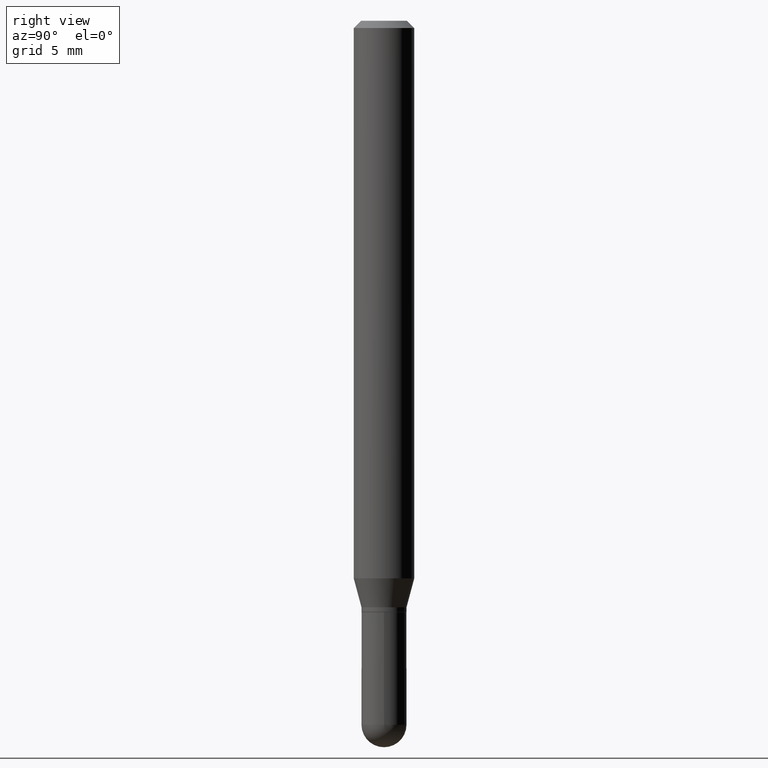
[diagram: clean part render]
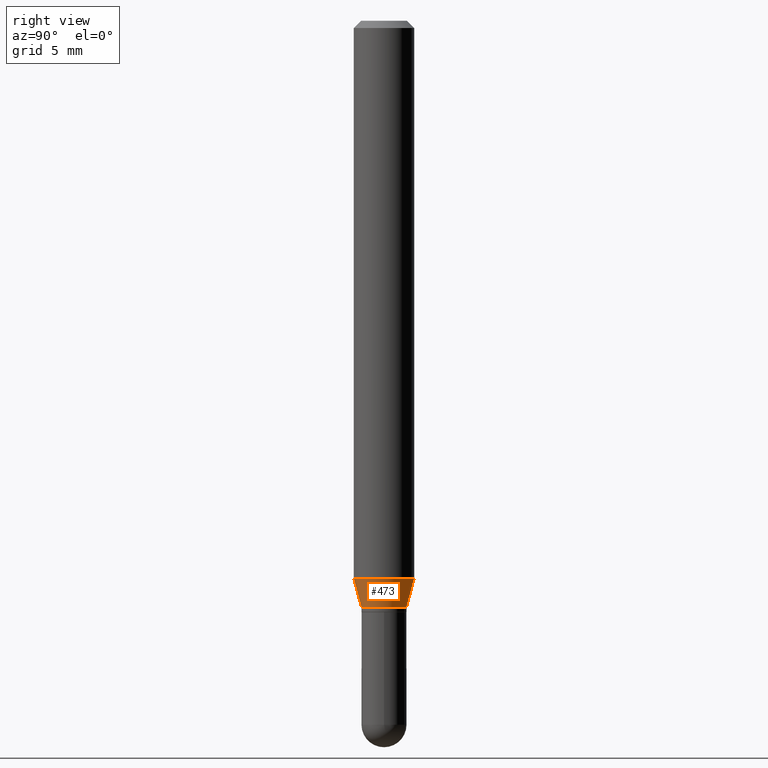
[diagram: same view with one face highlighted and labeled with its STEP entity id]
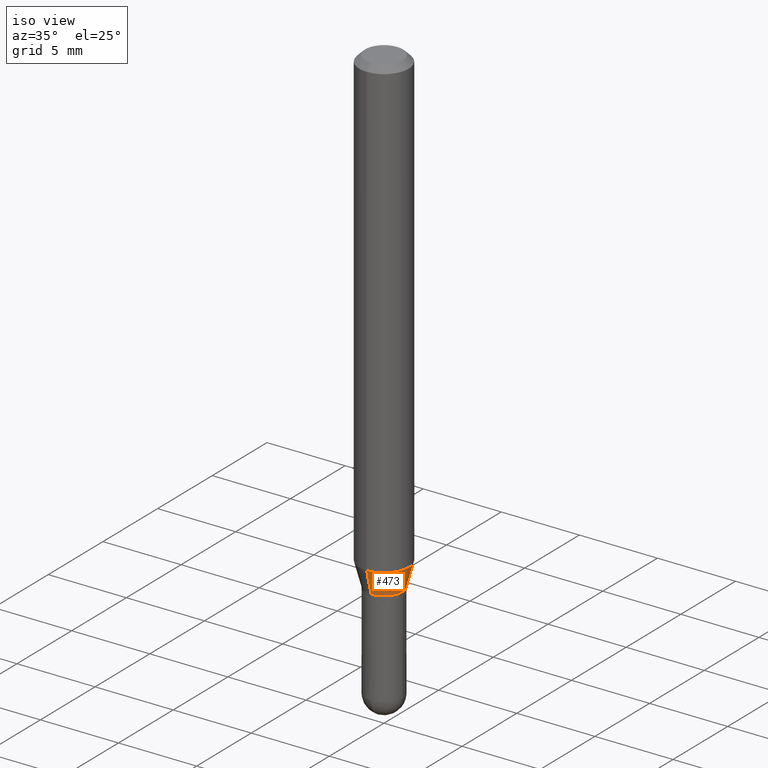
[diagram: same view with one face highlighted and labeled with its STEP entity id]
A machine part, right view. The second image highlights one B-rep face of the part: STEP entity #473.
A second angle (iso view) of the same face is appended — the face is thin or edge-on in the first view.
In plain terms, the highlighted conical surface has half-angle 15 deg.
Its self-contained STEP definition (entity closure, byte-faithful):
#9 = DIRECTION ( 'NONE',  ( -6.982962677686266711E-15, -1.000000000000000000, 2.937470960929311090E-15 ) ) ;
#13 = VERTEX_POINT ( 'NONE', #455 ) ;
#17 = DIRECTION ( 'NONE',  ( -1.807323732225332900E-15, -0.2588190451025185745, 0.9659258262890687563 ) ) ;
#21 = VERTEX_POINT ( 'NONE', #293 ) ;
#74 = DIRECTION ( 'NONE',  ( -6.982962677686266711E-15, -1.000000000000000000, 2.937470960929311090E-15 ) ) ;
#108 = EDGE_CURVE ( 'NONE', #400, #21, #458, .T. ) ;
#118 = CARTESIAN_POINT ( 'NONE',  ( -4.364351673553635169E-16, -0.06250000000000402456, -1.151287187078898544 ) ) ;
#123 = ORIENTED_EDGE ( 'NONE', *, *, #313, .T. ) ;
#143 = ORIENTED_EDGE ( 'NONE', *, *, #309, .F. ) ;
#152 = DIRECTION ( 'NONE',  ( -2.445413414285235808E-29, 3.491560663196514639E-15, 1.000000000000000000 ) ) ;
#187 = VERTEX_POINT ( 'NONE', #118 ) ;
#191 = DIRECTION ( 'NONE',  ( 1.839019923739603471E-15, 0.2588190451025254024, 0.9659258262890670910 ) ) ;
#198 = CIRCLE ( 'NONE', #486, 0.06250000000000000000 ) ;
#205 = VECTOR ( 'NONE', #191, 39.37007874015748143 ) ;
#220 = EDGE_CURVE ( 'NONE', #187, #21, #198, .T. ) ;
#254 = ORIENTED_EDGE ( 'NONE', *, *, #220, .F. ) ;
#261 = CARTESIAN_POINT ( 'NONE',  ( 2.961395644699421019E-29, -4.228279963130980409E-15, -1.211000000000000298 ) ) ;
#284 = CARTESIAN_POINT ( 'NONE',  ( -3.247077645123822595E-16, -0.04650000000000429484, -1.211000000000000076 ) ) ;
#287 = DIRECTION ( 'NONE',  ( -6.982962677686265922E-15, -1.000000000000000000, 4.370956789862821150E-15 ) ) ;
#290 = AXIS2_PLACEMENT_3D ( 'NONE', #261, #152, #74 ) ;
#293 = CARTESIAN_POINT ( 'NONE',  ( 4.440892098500906207E-16, 0.06249999999999597544, -1.151287187078898988 ) ) ;
#296 = FACE_OUTER_BOUND ( 'NONE', #481, .T. ) ;
#309 = EDGE_CURVE ( 'NONE', #13, #187, #443, .T. ) ;
#313 = EDGE_CURVE ( 'NONE', #13, #400, #452, .T. ) ;
#322 = VECTOR ( 'NONE', #17, 39.37007874015748854 ) ;
#329 = AXIS2_PLACEMENT_3D ( 'NONE', #408, #441, #9 ) ;
#330 = ORIENTED_EDGE ( 'NONE', *, *, #108, .T. ) ;
#375 = DIRECTION ( 'NONE',  ( -2.445413414285235808E-29, 3.491560663196514639E-15, 1.000000000000000000 ) ) ;
#400 = VERTEX_POINT ( 'NONE', #418 ) ;
#408 = CARTESIAN_POINT ( 'NONE',  ( 2.961395644699421019E-29, -4.228279963130980409E-15, -1.211000000000000298 ) ) ;
#418 = CARTESIAN_POINT ( 'NONE',  ( 3.872457909892837387E-16, 0.04649999999999584327, -1.211000000000000520 ) ) ;
#437 = CONICAL_SURFACE ( 'NONE', #290, 0.04650000000000006906, 0.2617993877991507401 ) ;
#441 = DIRECTION ( 'NONE',  ( -2.445413414285235808E-29, 3.491560663196514639E-15, 1.000000000000000000 ) ) ;
#443 = LINE ( 'NONE', #284, #322 ) ;
#452 = CIRCLE ( 'NONE', #329, 0.04650000000000006906 ) ;
#455 = CARTESIAN_POINT ( 'NONE',  ( -3.247077645123822595E-16, -0.04650000000000429484, -1.211000000000000076 ) ) ;
#458 = LINE ( 'NONE', #468, #205 ) ;
#468 = CARTESIAN_POINT ( 'NONE',  ( 3.304023721284766101E-16, 0.04649999999999584327, -1.211000000000000520 ) ) ;
#473 = ADVANCED_FACE ( 'NONE', ( #296 ), #437, .T. ) ;
#481 = EDGE_LOOP ( 'NONE', ( #123, #330, #254, #143 ) ) ;
#485 = CARTESIAN_POINT ( 'NONE',  ( 2.815373130977454696E-29, -4.019789054446849905E-15, -1.151287187078898766 ) ) ;
#486 = AXIS2_PLACEMENT_3D ( 'NONE', #485, #375, #287 ) ;